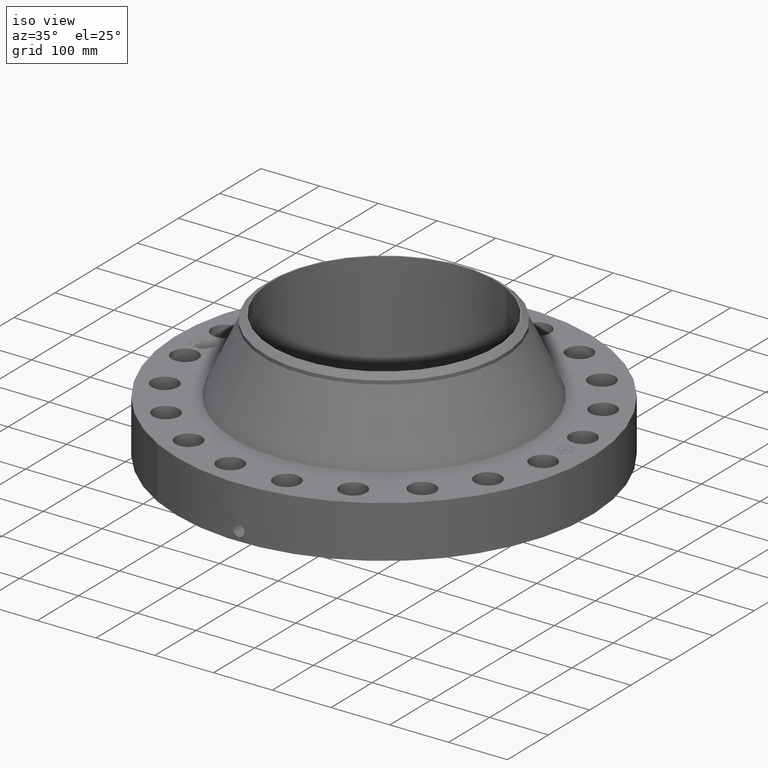
[diagram: clean part render]
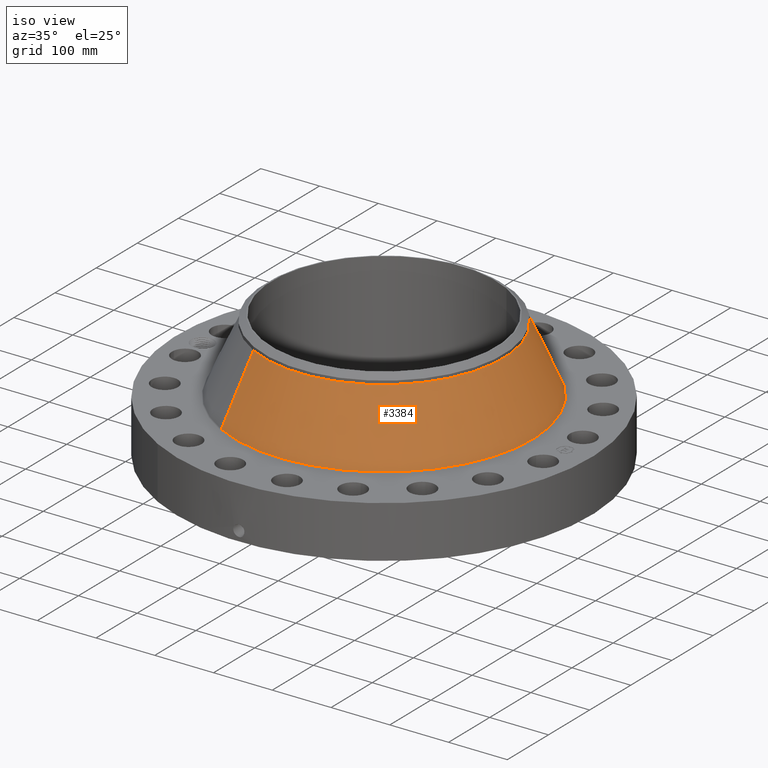
[diagram: same view with one face highlighted and labeled with its STEP entity id]
A machine part, iso view. The second image highlights one B-rep face of the part: STEP entity #3384.
In plain terms, the highlighted conical surface has half-angle 24.247 deg.
Its self-contained STEP definition (entity closure, byte-faithful):
#2659=AXIS2_PLACEMENT_3D('Circle Axis2P3D',#2657,#2658,$) ;
#3357=AXIS2_PLACEMENT_3D('Cone Axis2P3D',#3354,#3355,#3356) ;
#3368=AXIS2_PLACEMENT_3D('Circle Axis2P3D',#3366,#3367,$) ;
#2654=CARTESIAN_POINT('Vertex',(4.7789846742,8.74787276837,3.82072019782)) ;
#2657=CARTESIAN_POINT('Axis2P3D Location',(0.,0.,3.82072019782)) ;
#2661=CARTESIAN_POINT('Vertex',(-4.7789846742,-8.74787276837,3.82072019782)) ;
#3354=CARTESIAN_POINT('Axis2P3D Location',(0.,0.,8.19053548148)) ;
#3359=CARTESIAN_POINT('Line Origine',(4.30719449152,7.88426663176,6.00562783965)) ;
#3363=CARTESIAN_POINT('Vertex',(3.83540430885,7.02066049515,8.19053548148)) ;
#3366=CARTESIAN_POINT('Axis2P3D Location',(0.,0.,8.19053548148)) ;
#3370=CARTESIAN_POINT('Vertex',(-3.83540430885,-7.02066049515,8.19053548148)) ;
#3373=CARTESIAN_POINT('Line Origine',(-4.30719449152,-7.88426663176,6.00562783965)) ;
#2658=DIRECTION('Axis2P3D Direction',(0.,0.,-0.0393700787402)) ;
#3355=DIRECTION('Axis2P3D Direction',(0.,0.,-0.0393700787402)) ;
#3356=DIRECTION('Axis2P3D XDirection',(-0.0188750212049,-0.0345504945626,0.)) ;
#3360=DIRECTION('Vector Direction',(0.00775131092768,0.0141886794803,-0.0358970981211)) ;
#3367=DIRECTION('Axis2P3D Direction',(0.,0.,-0.0393700787402)) ;
#3374=DIRECTION('Vector Direction',(-0.00775131092768,-0.0141886794803,-0.0358970981211)) ;
#3361=VECTOR('Line Direction',#3360,0.0393700787402) ;
#3375=VECTOR('Line Direction',#3374,0.0393700787402) ;
#3379=ORIENTED_EDGE('',*,*,#2663,.F.) ;
#3380=ORIENTED_EDGE('',*,*,#3365,.T.) ;
#3381=ORIENTED_EDGE('',*,*,#3372,.T.) ;
#3382=ORIENTED_EDGE('',*,*,#3377,.F.) ;
#3384=ADVANCED_FACE('PartBody',(#3383),#3358,.T.) ;
#2660=CIRCLE('generated circle',#2659,9.96814789657) ;
#3369=CIRCLE('generated circle',#3368,8.00000000003) ;
#3358=CONICAL_SURFACE('Cone',#3357,8.00000000003,0.423183300087) ;
#2663=EDGE_CURVE('',#2655,#2662,#2660,.T.) ;
#3365=EDGE_CURVE('',#2655,#3364,#3362,.F.) ;
#3372=EDGE_CURVE('',#3364,#3371,#3369,.T.) ;
#3377=EDGE_CURVE('',#2662,#3371,#3376,.F.) ;
#3378=EDGE_LOOP('',(#3379,#3380,#3381,#3382)) ;
#3383=FACE_OUTER_BOUND('',#3378,.T.) ;
#3362=LINE('Line',#3359,#3361) ;
#3376=LINE('Line',#3373,#3375) ;
#2655=VERTEX_POINT('',#2654) ;
#2662=VERTEX_POINT('',#2661) ;
#3364=VERTEX_POINT('',#3363) ;
#3371=VERTEX_POINT('',#3370) ;